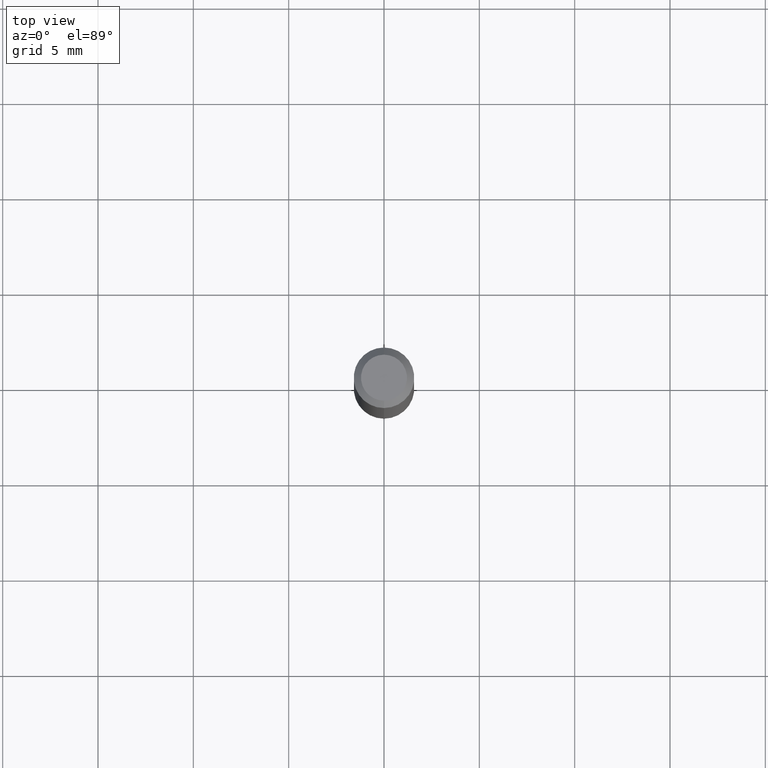
[diagram: clean part render]
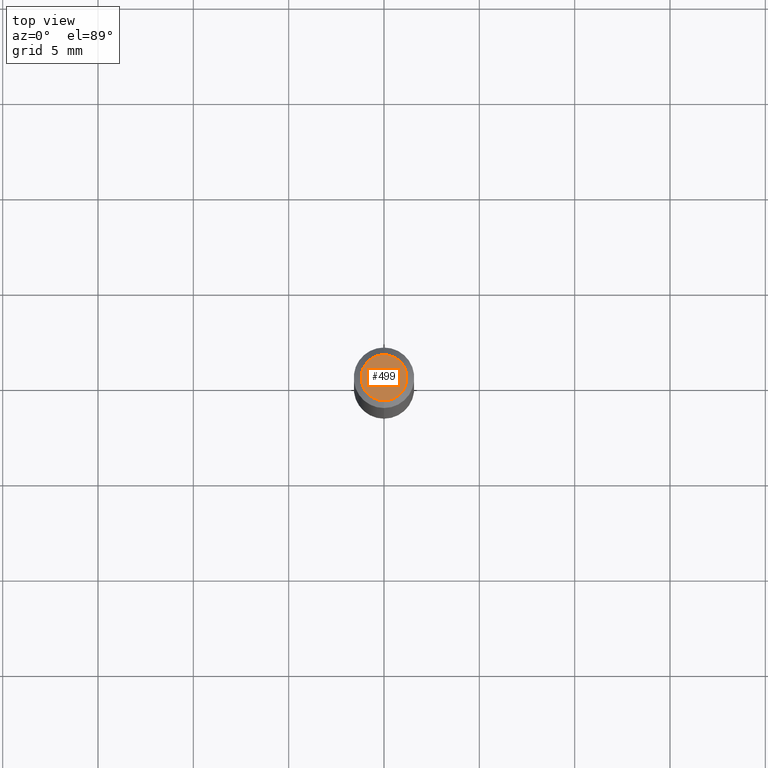
[diagram: same view with one face highlighted and labeled with its STEP entity id]
A machine part, top view. The second image highlights one B-rep face of the part: STEP entity #499.
In plain terms, the highlighted planar face has unit normal (0, -0, -1).
Its self-contained STEP definition (entity closure, byte-faithful):
#45 = EDGE_LOOP ( 'NONE', ( #200, #116 ) ) ;
#54 = CARTESIAN_POINT ( 'NONE',  ( 3.316907271900976096E-16, 0.04749999999999999362, -1.985958413625930540E-16 ) ) ;
#94 = CARTESIAN_POINT ( 'NONE',  ( -3.773273898774340269E-16, -0.04749999999999999362, 1.003465725080354180E-16 ) ) ;
#116 = ORIENTED_EDGE ( 'NONE', *, *, #285, .T. ) ;
#129 = DIRECTION ( 'NONE',  ( 6.982962677686265922E-15, 1.000000000000000000, -3.491496527952432506E-15 ) ) ;
#147 = EDGE_CURVE ( 'NONE', #331, #450, #383, .T. ) ;
#152 = CARTESIAN_POINT ( 'NONE',  ( 1.601763200890746916E-45, -2.286913207197020571E-31, -6.549951256970509890E-17 ) ) ;
#163 = CARTESIAN_POINT ( 'NONE',  ( 3.840629472727447874E-16, 0.04749999999999999362, -2.313455976474456035E-16 ) ) ;
#200 = ORIENTED_EDGE ( 'NONE', *, *, #147, .T. ) ;
#272 = DIRECTION ( 'NONE',  ( -6.982962677686266711E-15, -1.000000000000000000, 3.491496527952432111E-15 ) ) ;
#282 = CIRCLE ( 'NONE', #358, 0.04749999999999999362 ) ;
#285 = EDGE_CURVE ( 'NONE', #450, #331, #282, .T. ) ;
#320 = DIRECTION ( 'NONE',  ( -2.445458199686811068E-29, 3.491496527952432111E-15, 1.000000000000000000 ) ) ;
#331 = VERTEX_POINT ( 'NONE', #163 ) ;
#358 = AXIS2_PLACEMENT_3D ( 'NONE', #405, #441, #399 ) ;
#378 = DIRECTION ( 'NONE',  ( 2.445458199686810508E-29, -3.491496527952432506E-15, -1.000000000000000000 ) ) ;
#383 = CIRCLE ( 'NONE', #384, 0.04749999999999999362 ) ;
#384 = AXIS2_PLACEMENT_3D ( 'NONE', #152, #320, #272 ) ;
#399 = DIRECTION ( 'NONE',  ( -6.982962677686266711E-15, -1.000000000000000000, 3.491496527952432111E-15 ) ) ;
#405 = CARTESIAN_POINT ( 'NONE',  ( 1.601763200890746916E-45, -2.286913207197020571E-31, -6.549951256970509890E-17 ) ) ;
#411 = AXIS2_PLACEMENT_3D ( 'NONE', #54, #378, #129 ) ;
#412 = PLANE ( 'NONE',  #411 ) ;
#419 = FACE_OUTER_BOUND ( 'NONE', #45, .T. ) ;
#441 = DIRECTION ( 'NONE',  ( -2.445458199686811068E-29, 3.491496527952432111E-15, 1.000000000000000000 ) ) ;
#450 = VERTEX_POINT ( 'NONE', #94 ) ;
#499 = ADVANCED_FACE ( 'NONE', ( #419 ), #412, .F. ) ;